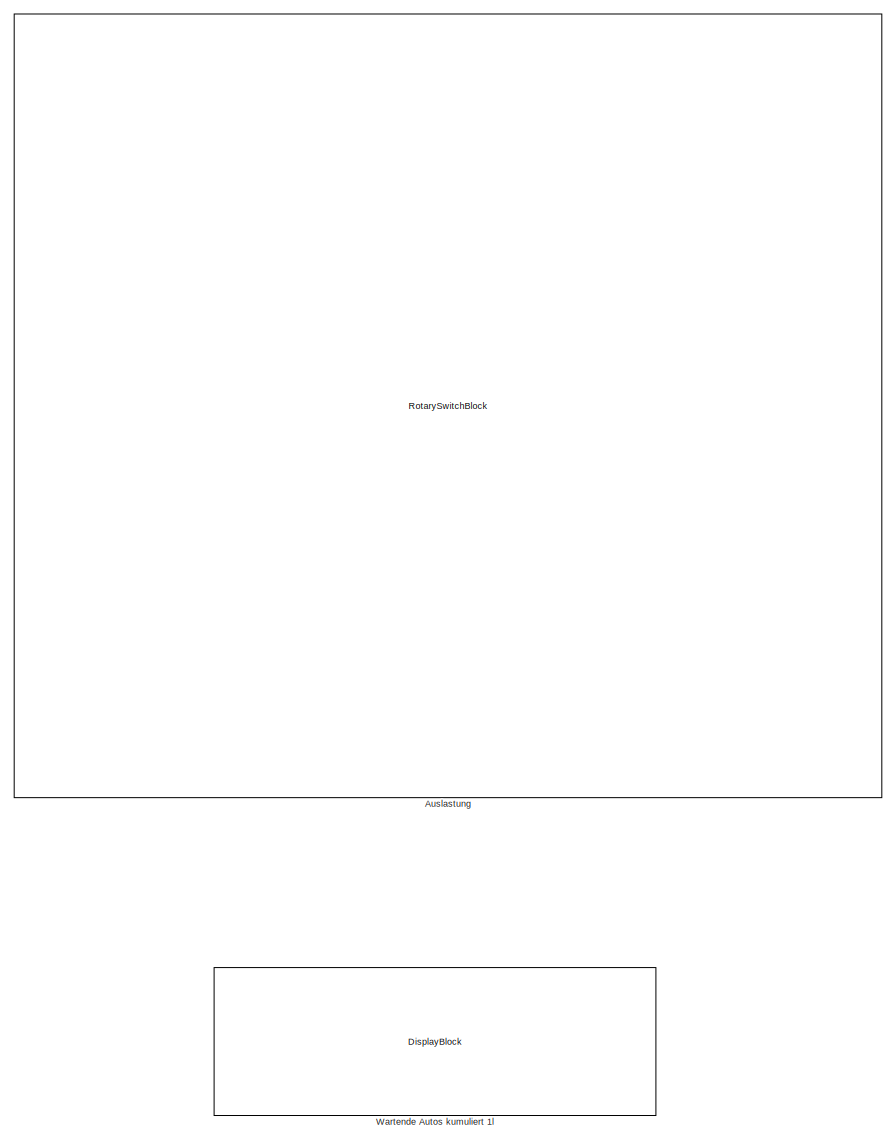
[diagram: root canvas - part 1/13, top right region]
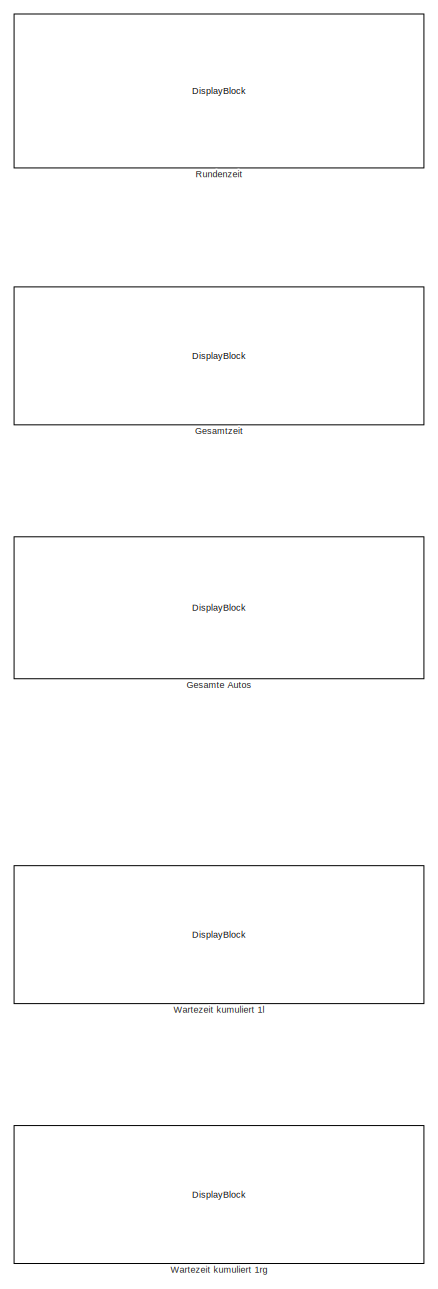
[diagram: root canvas - part 2/13, top right region]
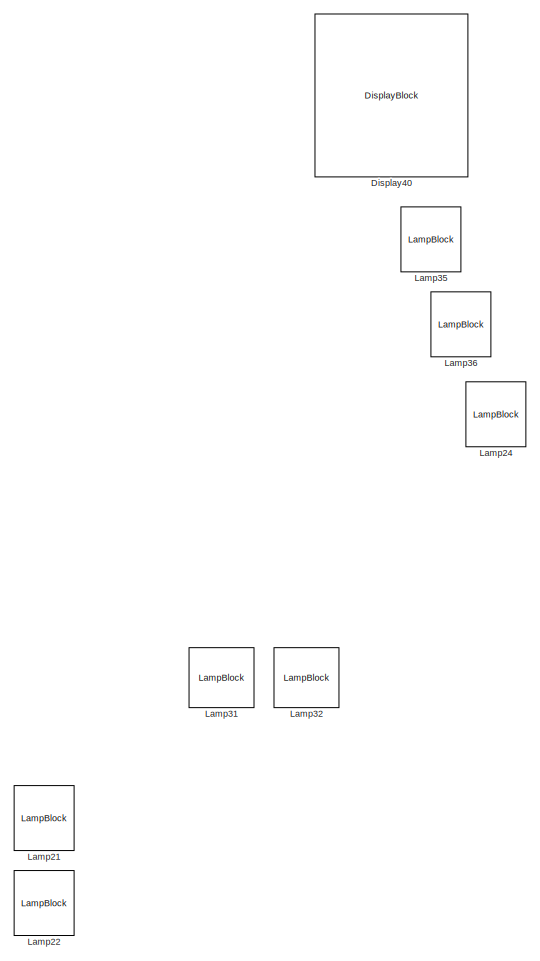
[diagram: root canvas - part 3/13, top left region]
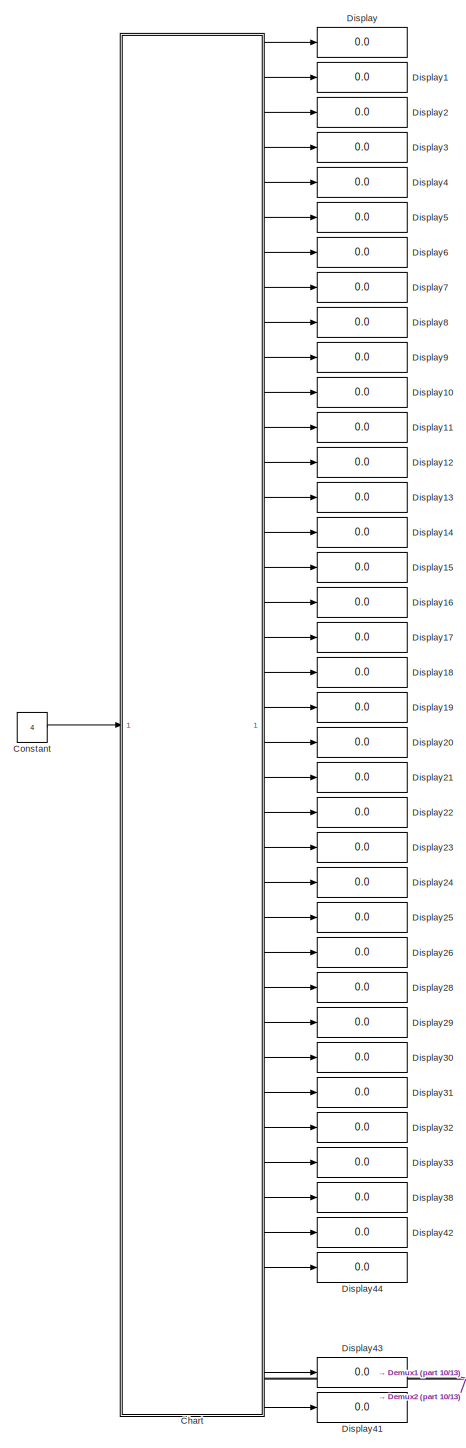
[diagram: root canvas - part 4/13, middle left region]
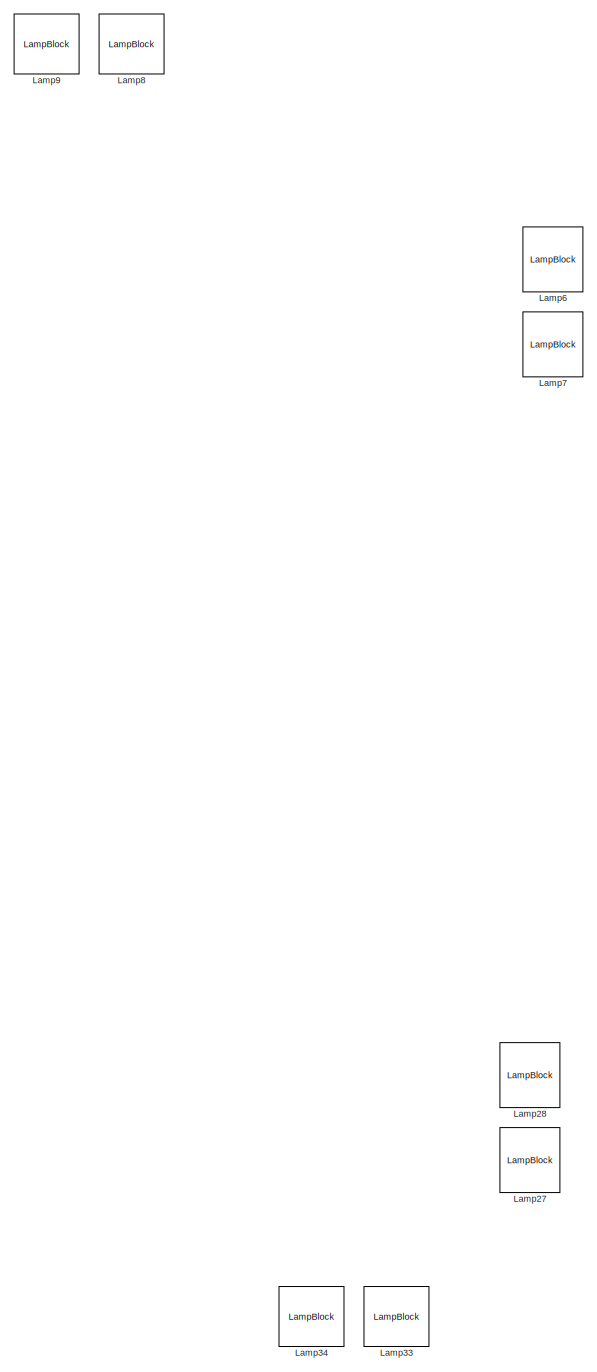
[diagram: root canvas - part 5/13, central region]
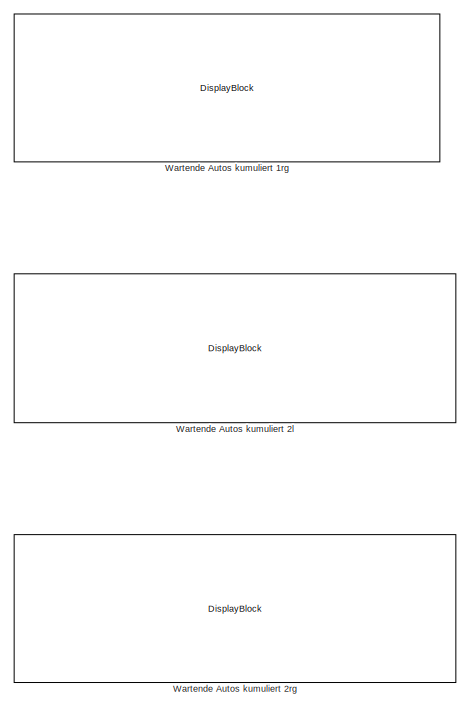
[diagram: root canvas - part 6/13, middle right region]
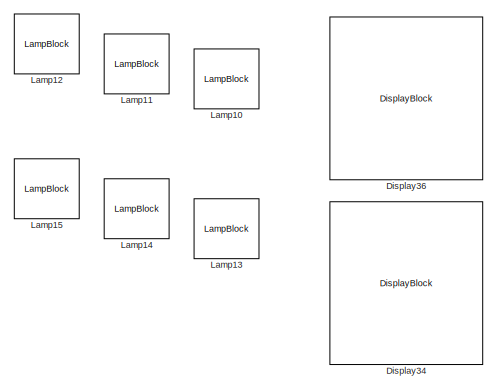
[diagram: root canvas - part 7/13, central region]
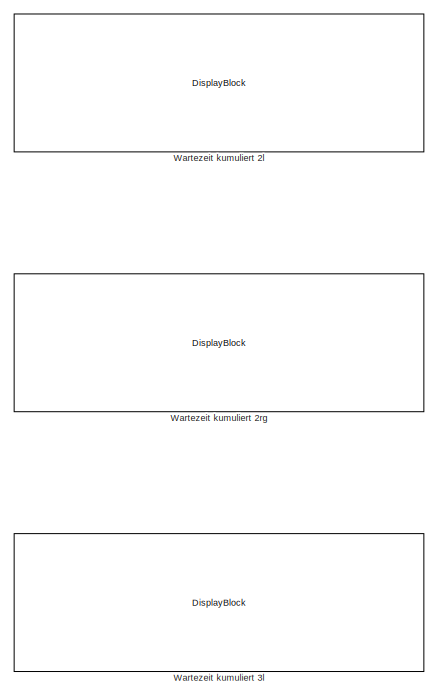
[diagram: root canvas - part 8/13, middle right region]
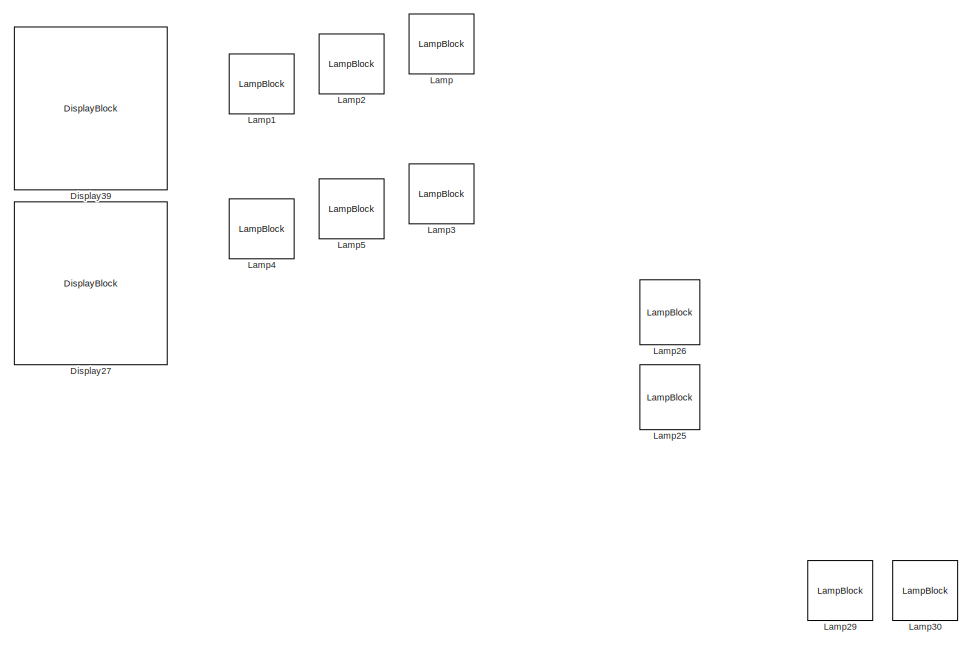
[diagram: root canvas - part 9/13, middle left region]
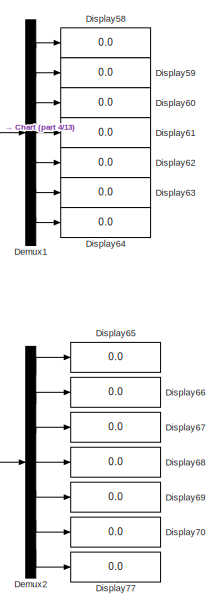
[diagram: root canvas - part 10/13, bottom left region]
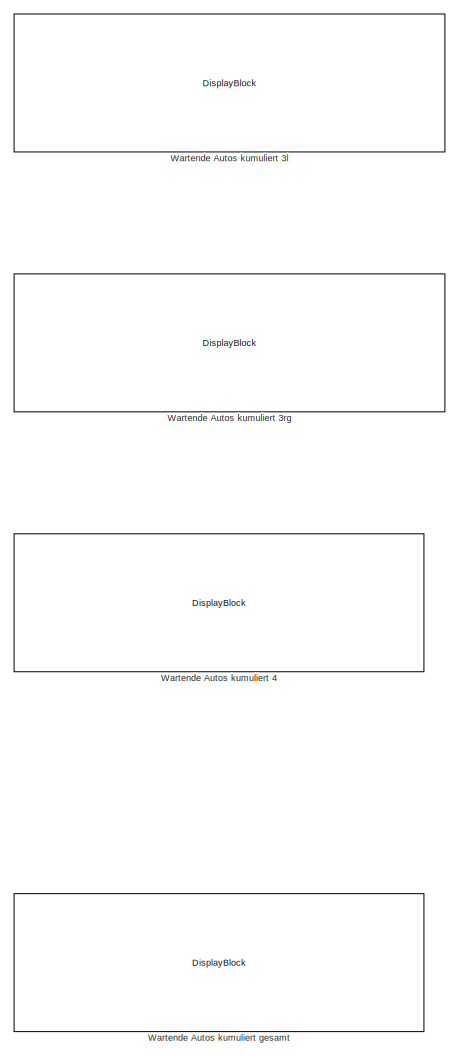
[diagram: root canvas - part 11/13, bottom right region]
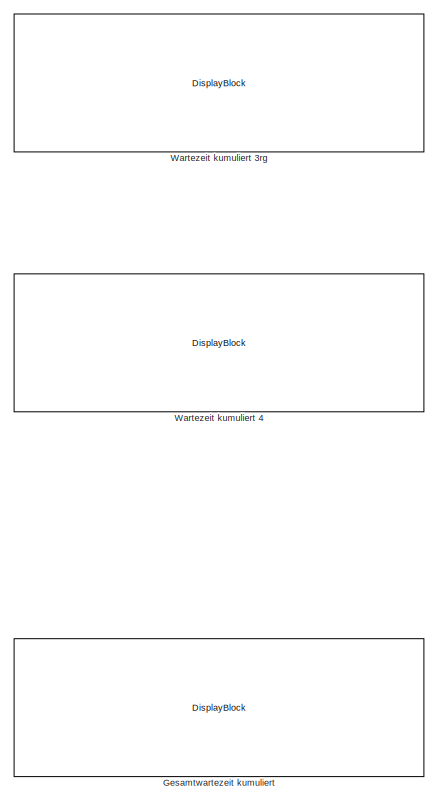
[diagram: root canvas - part 12/13, bottom right region]
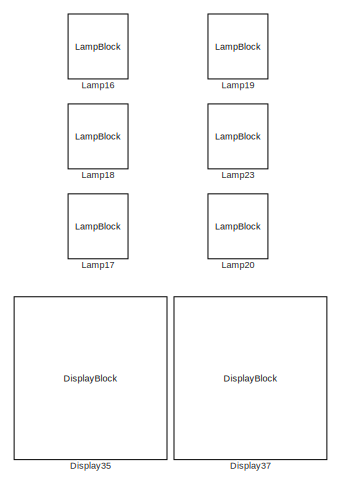
[diagram: root canvas - part 13/13, bottom center region]
MODEL slx_3543dd27c78e
KIND model
CONFIG AbsTol = auto
CONFIG EnableMultiTasking = off
CONFIG FixedStep = 1
CONFIG MaxStep = auto
CONFIG MinStep = auto
CONFIG RelTol = 1e-3
CONFIG SampleTimeConstraint = Unconstrained
CONFIG SolverName = FixedStepAuto
CONFIG StartTime = 0.0
CONFIG StopTime = 9995
WORKSPACE source: MATLAB code (in-file)
WORKSPACE code: function [autos_l1, autos_rg1, autos_2l, autos_2rg, autos_3l, autos_3rg, autos_4, fehler] = generateCars(Auslastung)
WORKSPACE code: if (auslastung == 1)
WORKSPACE autos_l1 = round(randn())
WORKSPACE autos_rg1 = round(randn())
WORKSPACE autos_2l = round(randn())
WORKSPACE autos_2rg = round(randn())
WORKSPACE autos_3l = round(randn())
WORKSPACE autos_3rg = round(randn())
WORKSPACE autos_4 = round(randn())
WORKSPACE code: else
WORKSPACE fehler = 1
WORKSPACE code: end
WORKSPACE code: if (auslastung == 2)
WORKSPACE autos_l1 = round(randn())
WORKSPACE autos_rg1 = round(4 + 2 * randn())
WORKSPACE autos_2l = round(1 + randn())
WORKSPACE autos_2rg = round(4 + 2 * randn())
WORKSPACE autos_3l = round(randn())
WORKSPACE autos_3rg = round(2 + randn())
WORKSPACE autos_4 = round(1 + randn())
WORKSPACE code: else
WORKSPACE fehler = 1
WORKSPACE code: end
WORKSPACE code: if (auslastung == 3)
WORKSPACE autos_l1 = round(1.5 + randn())
WORKSPACE autos_rg1 = round(7 + 2 * randn())
WORKSPACE autos_2l = round(2 + randn())
WORKSPACE autos_2rg = round(7 + 2 * randn())
WORKSPACE autos_3l = round(2 * randn())
WORKSPACE autos_3rg = round(3 + randn())
WORKSPACE autos_4 = round(2 + randn())
WORKSPACE code: else
WORKSPACE fehler = 1
WORKSPACE code: end
WORKSPACE code: if (auslastung == 4)
WORKSPACE autos_l1 = round(2.5 + randn())
WORKSPACE autos_rg1 = round(13 + 3 * randn())
WORKSPACE autos_2l = round(5 + randn())
WORKSPACE autos_2rg = round(13 + 3 * randn())
WORKSPACE autos_3l = round(2 + randn())
WORKSPACE autos_3rg = round(2 + randn())
WORKSPACE autos_4 = round(5 + randn())
WORKSPACE code: else
WORKSPACE fehler = 1
WORKSPACE code: end
WORKSPACE code: end
BLOCK [RotarySwitchBlock] Auslastung
  LabelPosition = Hide
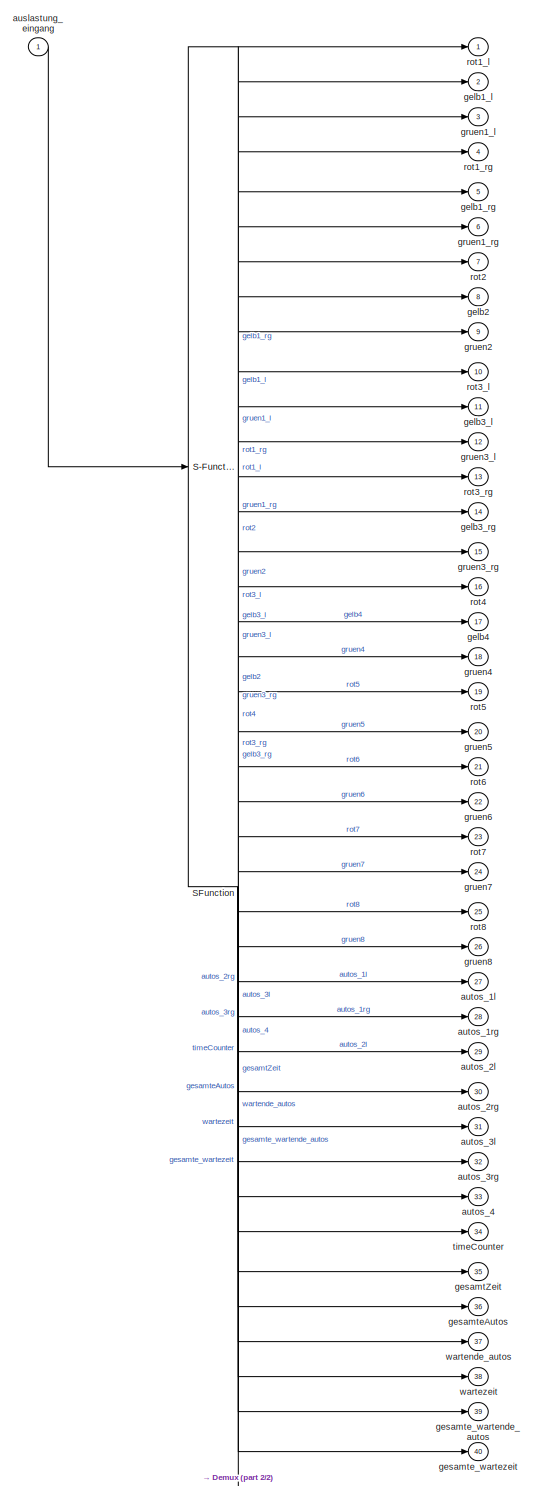
[diagram: Chart - part 1/2, most of the canvas]
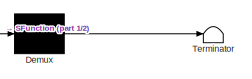
[diagram: Chart - part 2/2, bottom right region]
BLOCK [SubSystem] Chart
  ErrorFcn = Stateflow.Translate.translate
  PermitHierarchicalResolution = ExplicitOnly
  SFBlockType = Chart
  TreatAsAtomicUnit = on
BLOCK [Demux] Chart/ Demux 
  Outputs = 1
BLOCK [S-Function] Chart/ SFunction 
  EnableBusSupport = on
  FunctionName = sf_sfun
  PortCounts = [1 41]
  SFcnIsStateOwnerBlock = off
  SFunctionDeploymentMode = off
  Tag = Stateflow S-Function 3
BLOCK [Terminator] Chart/ Terminator 
BLOCK [Inport] Chart/auslastung_eingang
BLOCK [Outport] Chart/autos_1l
  Port = 27
BLOCK [Outport] Chart/autos_1rg
  Port = 28
BLOCK [Outport] Chart/autos_2l
  Port = 29
BLOCK [Outport] Chart/autos_2rg
  Port = 30
BLOCK [Outport] Chart/autos_3l
  Port = 31
BLOCK [Outport] Chart/autos_3rg
  Port = 32
BLOCK [Outport] Chart/autos_4
  Port = 33
BLOCK [Outport] Chart/gelb1_l
  Port = 2
BLOCK [Outport] Chart/gelb1_rg
  Port = 5
BLOCK [Outport] Chart/gelb2
  Port = 8
BLOCK [Outport] Chart/gelb3_l
  Port = 11
BLOCK [Outport] Chart/gelb3_rg
  Port = 14
BLOCK [Outport] Chart/gelb4
  Port = 17
BLOCK [Outport] Chart/gesamtZeit
  Port = 35
BLOCK [Outport] Chart/gesamteAutos
  Port = 36
BLOCK [Outport] Chart/gesamte_wartende_autos
  Port = 39
BLOCK [Outport] Chart/gesamte_wartezeit
  Port = 40
BLOCK [Outport] Chart/gruen1_l
  Port = 3
BLOCK [Outport] Chart/gruen1_rg
  Port = 6
BLOCK [Outport] Chart/gruen2
  Port = 9
BLOCK [Outport] Chart/gruen3_l
  Port = 12
BLOCK [Outport] Chart/gruen3_rg
  Port = 15
BLOCK [Outport] Chart/gruen4
  Port = 18
BLOCK [Outport] Chart/gruen5
  Port = 20
BLOCK [Outport] Chart/gruen6
  Port = 22
BLOCK [Outport] Chart/gruen7
  Port = 24
BLOCK [Outport] Chart/gruen8
  Port = 26
BLOCK [Outport] Chart/rot1_l
BLOCK [Outport] Chart/rot1_rg
  Port = 4
BLOCK [Outport] Chart/rot2
  Port = 7
BLOCK [Outport] Chart/rot3_l
  Port = 10
BLOCK [Outport] Chart/rot3_rg
  Port = 13
BLOCK [Outport] Chart/rot4
  Port = 16
BLOCK [Outport] Chart/rot5
  Port = 19
BLOCK [Outport] Chart/rot6
  Port = 21
BLOCK [Outport] Chart/rot7
  Port = 23
BLOCK [Outport] Chart/rot8
  Port = 25
BLOCK [Outport] Chart/timeCounter
  Port = 34
BLOCK [Outport] Chart/wartende_autos
  Port = 37
BLOCK [Outport] Chart/wartezeit
  Port = 38
BLOCK [Constant] Constant
  Value = 4
BLOCK [Demux] Demux1
  Outputs = 7
BLOCK [Demux] Demux2
  Outputs = 7
BLOCK [Display] Display
  Decimation = 1
BLOCK [Display] Display1
  Decimation = 1
BLOCK [Display] Display10
  Decimation = 1
BLOCK [Display] Display11
  Decimation = 1
BLOCK [Display] Display12
  Decimation = 1
BLOCK [Display] Display13
  Decimation = 1
BLOCK [Display] Display14
  Decimation = 1
BLOCK [Display] Display15
  Decimation = 1
BLOCK [Display] Display16
  Decimation = 1
BLOCK [Display] Display17
  Decimation = 1
BLOCK [Display] Display18
  Decimation = 1
BLOCK [Display] Display19
  Decimation = 1
BLOCK [Display] Display2
  Decimation = 1
BLOCK [Display] Display20
  Decimation = 1
BLOCK [Display] Display21
  Decimation = 1
BLOCK [Display] Display22
  Decimation = 1
BLOCK [Display] Display23
  Decimation = 1
BLOCK [Display] Display24
  Decimation = 1
BLOCK [Display] Display25
  Decimation = 1
BLOCK [Display] Display26
  Decimation = 1
BLOCK [DisplayBlock] Display27
  LabelPosition = Hide
  Layout = Fill available space
  Transparency = 1
BLOCK [Display] Display28
  Decimation = 1
BLOCK [Display] Display29
  Decimation = 1
BLOCK [Display] Display3
  Decimation = 1
BLOCK [Display] Display30
  Decimation = 1
BLOCK [Display] Display31
  Decimation = 1
BLOCK [Display] Display32
  Decimation = 1
BLOCK [Display] Display33
  Decimation = 1
BLOCK [DisplayBlock] Display34
  LabelPosition = Hide
  Layout = Fill available space
  Transparency = 1
BLOCK [DisplayBlock] Display35
  LabelPosition = Hide
  Layout = Fill available space
  Transparency = 1
BLOCK [DisplayBlock] Display36
  LabelPosition = Hide
  Layout = Fill available space
  Transparency = 1
BLOCK [DisplayBlock] Display37
  LabelPosition = Hide
  Layout = Fill available space
  Transparency = 1
BLOCK [Display] Display38
  Decimation = 1
BLOCK [DisplayBlock] Display39
  LabelPosition = Hide
  Layout = Fill available space
  Transparency = 1
BLOCK [Display] Display4
  Decimation = 1
BLOCK [DisplayBlock] Display40
  LabelPosition = Hide
  Layout = Fill available space
  Transparency = 1
BLOCK [Display] Display41
  Decimation = 1
BLOCK [Display] Display42
  Decimation = 1
BLOCK [Display] Display43
  Decimation = 1
BLOCK [Display] Display44
  Decimation = 1
BLOCK [Display] Display5
  Decimation = 1
BLOCK [Display] Display58
  Decimation = 1
BLOCK [Display] Display59
  Decimation = 1
BLOCK [Display] Display6
  Decimation = 1
BLOCK [Display] Display60
  Decimation = 1
BLOCK [Display] Display61
  Decimation = 1
BLOCK [Display] Display62
  Decimation = 1
BLOCK [Display] Display63
  Decimation = 1
BLOCK [Display] Display64
  Decimation = 1
BLOCK [Display] Display65
  Decimation = 1
BLOCK [Display] Display66
  Decimation = 1
BLOCK [Display] Display67
  Decimation = 1
BLOCK [Display] Display68
  Decimation = 1
BLOCK [Display] Display69
  Decimation = 1
BLOCK [Display] Display7
  Decimation = 1
BLOCK [Display] Display70
  Decimation = 1
BLOCK [Display] Display77
  Decimation = 1
BLOCK [Display] Display8
  Decimation = 1
BLOCK [Display] Display9
  Decimation = 1
BLOCK [DisplayBlock] Gesamte Autos
  LabelPosition = Hide
  Transparency = 1
BLOCK [DisplayBlock] Gesamtwartezeit kumuliert
  LabelPosition = Hide
  Transparency = 1
BLOCK [DisplayBlock] Gesamtzeit
  LabelPosition = Hide
  Transparency = 1
BLOCK [LampBlock] Lamp
  LabelPosition = Hide
BLOCK [LampBlock] Lamp1
  LabelPosition = Hide
BLOCK [LampBlock] Lamp10
  LabelPosition = Hide
BLOCK [LampBlock] Lamp11
  LabelPosition = Hide
BLOCK [LampBlock] Lamp12
  LabelPosition = Hide
BLOCK [LampBlock] Lamp13
  LabelPosition = Hide
BLOCK [LampBlock] Lamp14
  LabelPosition = Hide
BLOCK [LampBlock] Lamp15
  LabelPosition = Hide
BLOCK [LampBlock] Lamp16
  LabelPosition = Hide
  NameLocation = right
BLOCK [LampBlock] Lamp17
  LabelPosition = Hide
  NameLocation = right
BLOCK [LampBlock] Lamp18
  LabelPosition = Hide
  NameLocation = right
BLOCK [LampBlock] Lamp19
  LabelPosition = Hide
  NameLocation = right
BLOCK [LampBlock] Lamp2
  LabelPosition = Hide
BLOCK [LampBlock] Lamp20
  LabelPosition = Hide
  NameLocation = right
BLOCK [LampBlock] Lamp21
  LabelPosition = Hide
  NameLocation = right
BLOCK [LampBlock] Lamp22
  LabelPosition = Hide
  NameLocation = right
BLOCK [LampBlock] Lamp23
  LabelPosition = Hide
  NameLocation = right
BLOCK [LampBlock] Lamp24
  LabelPosition = Hide
  NameLocation = left
BLOCK [LampBlock] Lamp25
  LabelPosition = Hide
  NameLocation = left
BLOCK [LampBlock] Lamp26
  LabelPosition = Hide
  NameLocation = left
BLOCK [LampBlock] Lamp27
  LabelPosition = Hide
  NameLocation = left
BLOCK [LampBlock] Lamp28
  LabelPosition = Hide
  NameLocation = left
BLOCK [LampBlock] Lamp29
  LabelPosition = Hide
  NameLocation = top
BLOCK [LampBlock] Lamp3
  LabelPosition = Hide
BLOCK [LampBlock] Lamp30
  LabelPosition = Hide
  NameLocation = top
BLOCK [LampBlock] Lamp31
  LabelPosition = Hide
  NameLocation = top
BLOCK [LampBlock] Lamp32
  LabelPosition = Hide
  NameLocation = top
BLOCK [LampBlock] Lamp33
  LabelPosition = Hide
BLOCK [LampBlock] Lamp34
  LabelPosition = Hide
BLOCK [LampBlock] Lamp35
  LabelPosition = Hide
  NameLocation = left
BLOCK [LampBlock] Lamp36
  LabelPosition = Hide
  NameLocation = left
BLOCK [LampBlock] Lamp4
  LabelPosition = Hide
BLOCK [LampBlock] Lamp5
  LabelPosition = Hide
BLOCK [LampBlock] Lamp6
  LabelPosition = Hide
  NameLocation = right
BLOCK [LampBlock] Lamp7
  LabelPosition = Hide
  NameLocation = right
BLOCK [LampBlock] Lamp8
  LabelPosition = Hide
  NameLocation = top
BLOCK [LampBlock] Lamp9
  LabelPosition = Hide
  NameLocation = top
BLOCK [DisplayBlock] Rundenzeit
  LabelPosition = Hide
  Transparency = 1
BLOCK [DisplayBlock] Wartende Autos kumuliert 1l
  LabelPosition = Hide
  Transparency = 1
BLOCK [DisplayBlock] Wartende Autos kumuliert 1rg
  LabelPosition = Hide
  Transparency = 1
BLOCK [DisplayBlock] Wartende Autos kumuliert 2l
  LabelPosition = Hide
  Transparency = 1
BLOCK [DisplayBlock] Wartende Autos kumuliert 2rg
  LabelPosition = Hide
  Transparency = 1
BLOCK [DisplayBlock] Wartende Autos kumuliert 3l
  LabelPosition = Hide
  Transparency = 1
BLOCK [DisplayBlock] Wartende Autos kumuliert 3rg
  LabelPosition = Hide
  Transparency = 1
BLOCK [DisplayBlock] Wartende Autos kumuliert 4
  LabelPosition = Hide
  Transparency = 1
BLOCK [DisplayBlock] Wartende Autos kumuliert gesamt
  LabelPosition = Hide
  Transparency = 1
BLOCK [DisplayBlock] Wartezeit kumuliert 1l
  LabelPosition = Hide
  Transparency = 1
BLOCK [DisplayBlock] Wartezeit kumuliert 1rg
  LabelPosition = Hide
  Transparency = 1
BLOCK [DisplayBlock] Wartezeit kumuliert 2l
  LabelPosition = Hide
  Transparency = 1
BLOCK [DisplayBlock] Wartezeit kumuliert 2rg
  LabelPosition = Hide
  Transparency = 1
BLOCK [DisplayBlock] Wartezeit kumuliert 3l
  LabelPosition = Hide
  Transparency = 1
BLOCK [DisplayBlock] Wartezeit kumuliert 3rg
  LabelPosition = Hide
  Transparency = 1
BLOCK [DisplayBlock] Wartezeit kumuliert 4
  LabelPosition = Hide
  Transparency = 1
LINE Chart:1 -> Display:1
LINE Chart:10 -> Display9:1
LINE Chart:11 -> Display10:1
LINE Chart:12 -> Display11:1
LINE Chart:13 -> Display12:1
LINE Chart:14 -> Display13:1
LINE Chart:15 -> Display14:1
LINE Chart:16 -> Display15:1
LINE Chart:17 -> Display16:1
LINE Chart:18 -> Display17:1
LINE Chart:19 -> Display18:1
LINE Chart:2 -> Display1:1
LINE Chart:20 -> Display19:1
LINE Chart:21 -> Display20:1
LINE Chart:22 -> Display21:1
LINE Chart:23 -> Display22:1
LINE Chart:24 -> Display23:1
LINE Chart:25 -> Display24:1
LINE Chart:26 -> Display25:1
LINE Chart:27 -> Display26:1
LINE Chart:28 -> Display28:1
LINE Chart:29 -> Display29:1
LINE Chart:3 -> Display2:1
LINE Chart:30 -> Display30:1
LINE Chart:31 -> Display31:1
LINE Chart:32 -> Display32:1
LINE Chart:33 -> Display33:1
LINE Chart:34 -> Display38:1
LINE Chart:35 -> Display42:1
LINE Chart:36 -> Display44:1
LINE Chart:37 -> Demux1:1
LINE Chart:38 -> Demux2:1
LINE Chart:39 -> Display43:1
LINE Chart:4 -> Display3:1
LINE Chart:40 -> Display41:1
LINE Chart:5 -> Display4:1
LINE Chart:6 -> Display5:1
LINE Chart:7 -> Display6:1
LINE Chart:8 -> Display7:1
LINE Chart:9 -> Display8:1
LINE Constant:1 -> Chart:1
LINE Demux1:1 -> Display58:1
LINE Demux1:2 -> Display59:1
LINE Demux1:3 -> Display60:1
LINE Demux1:4 -> Display61:1
LINE Demux1:5 -> Display62:1
LINE Demux1:6 -> Display63:1
LINE Demux1:7 -> Display64:1
LINE Demux2:1 -> Display65:1
LINE Demux2:2 -> Display66:1
LINE Demux2:3 -> Display67:1
LINE Demux2:4 -> Display68:1
LINE Demux2:5 -> Display69:1
LINE Demux2:6 -> Display70:1
LINE Demux2:7 -> Display77:1
CHART Chart states=59 transitions=140
  STATE_LABEL 'Start\nentry:\nrot1_l = 1;\ngelb1_l = 0;\ngruen1_l = 0;\nrot1_rg = 1;\ngelb1_rg = 0;\ngruen1_rg = 0;\nrot2 = 1;\ngelb2 = 0;\ngruen2 = 0;\nrot3_l = 1;\ngelb3_l = 0;\ngruen3_l = 0;\nrot3_rg = 1;\ngelb3_rg = 0;\ngruen3_rg = 0;\nrot4 = 1;\ngelb4 = 0;\ngruen4 = 0;\nrot5 = 1;\ngruen5 = 0;\nrot6 = 1;\ngruen6 = 0;\nrot7 = 1;\ngruen7 = 0;\nrot8 = 1;\ngruen8 = 0;\nrestliche_autos = [0 0 0 0 0 0 0];\ntimeCounter = 0;\ntimer_spuren = [0 0...<+194ch>'
  STATE_LABEL 'maximale_kapazitaet = generiereKapazitaet'
  STATE_LABEL 'SCRIPT:\nfunction maximale_kapazitaet = generiereKapazitaet()\n    maximale_kapazitaet = [5 + randn(),  20 + 3 * randn(), 30 + 3 * randn(), 5 + 2 * randn(), 8 + 2 * randn(), 20 + 3 * randn(),  25 + 3 * randn(), 5 + randn(), 8 + 2 * randn(), 8 + 2 * randn()];\n    untere_kapazitaet = [3, 15, 22, 3, 5, 15, 19, 3, 5, 5];\n    obere_kapazitaet = [7, 25, 35, 7, 10, 25, 32, 7, 10, 10];\n    for i = 1:10\n    ...<+349ch>'
  STATE_LABEL 'anzahl_autos_pro_spur = generiereAutos(auslastung)'
  STATE_LABEL 'SCRIPT:\nfunction anzahl_autos_pro_spur = generiereAutos(auslastung)\n\n    if (auslastung == 1)\n        autos_1l = round(0.5 * randn());\n        autos_1rg = round(0.5 * randn());\n        autos_2l = round(0.5 * randn());\n        autos_2rg = round(0.5 * randn());\n        autos_3l = round(0.5 * randn());\n        autos_3rg = round(0.5 * randn());\n        autos_4 = round(0.5 * randn());\n    elseif (ausla...<+1692ch>'
  STATE_LABEL 'count_spur = countOnwards(time, timeElapsed, spuren)'
  STATE_LABEL 'SCRIPT:\nfunction count_spur = countOnwards(time, timeElapsed, spuren)\n    count_spur = time;\n    i = 1;\n    for i = 1 : length(time)\n        if spuren(i) == 1\n            count_spur(i) = count_spur(i) + timeElapsed;\n        end\n    end\nend'
  STATE_LABEL 'Autozuweisung\nentry:\nautos_1l = autos(1) + restliche_autos(1);\nautos_1rg = autos(2) + restliche_autos(2);\nautos_2l = autos(3) + restliche_autos(3);\nautos_2rg = autos(4) + restliche_autos(4);\nautos_3l = autos(5) + restliche_autos(5);\nautos_3rg = autos(6) + restliche_autos(6);\nautos_4 = autos(7) + restliche_autos(7);\n'
  STATE_LABEL 'runden_wartende_autos\nentry:\nrunden_wartende_autos = [autos_1l, autos_1rg, autos_2l, autos_2rg, autos_3l, autos_3rg, autos_4]'
  STATE_LABEL 'l1_rg1_rotgelb\nentry:\ngelb1_l = 1;\ngelb1_rg = 1;'
  STATE_LABEL '[resetted_time, ges_gewartete_autos, ges_gewartete_zeit, ges_wartende_autos, ges_wartezeit] = multifunction(timer,spuren,ges_gewartete_zeit, gewartete_autos, ges_gewartete_autos, ges_wartende_autos, ges_wartezeit)'
  STATE_LABEL 'SCRIPT:\nfunction [resetted_time, ges_gewartete_autos, ges_gewartete_zeit, ges_wartende_autos, ges_wartezeit] = multifunction(timer,spuren,ges_gewartete_zeit, gewartete_autos, ges_gewartete_autos, ges_wartende_autos, ges_wartezeit)\n    resetted_time = timer;\n    for i = 1 : length(spuren)\n        if spuren(i) == 1\n            resetted_time(i) = 0;\n            ges_gewartete_autos(i) = ges_gewartete_...<+314ch>'
  STATE_LABEL 'rg1_ampel2_rotgelb\nentry:\ngelb1_rg = 1;\ngelb2 = 1;'
  STATE_LABEL 'l1_rg1_gruen\nentry:\nrot1_l = 0;\ngelb1_l = 0;\ngruen1_l = 1;\nrot1_rg = 0;\ngelb1_rg = 0;\ngruen1_rg = 1;\nrot7 = 0;\ngruen7 = 1;'
  STATE_LABEL 'rg1_ampel2_gruen\nentry:\nrot1_rg = 0;\ngelb1_rg = 0;\ngruen1_rg = 1;\nrot2 = 0;\ngelb2 = 0;\ngruen2 = 1;\nrot7 = 0;\ngruen7 = 1;\nrot8 = 0;\ngruen8 = 1;'
  STATE_LABEL 'l1_gelb\nentry:\ngelb1_l = 1;\ngruen1_l = 0;'
  STATE_LABEL 'l1_rot\nentry:\nrot1_l = 1;\ngelb1_l = 0;'
  STATE_LABEL 'verbleibende_autos = subtrahiereAutos(anzahl_autos_pro_spur, maximale_kapazitaet)'
  STATE_LABEL 'SCRIPT:\nfunction verbleibende_autos = subtrahiereAutos(anzahl_autos_pro_spur, maximale_kapazitaet)\n    verbleibende_autos = round(anzahl_autos_pro_spur - maximale_kapazitaet);\n    if (verbleibende_autos < 0)\n        verbleibende_autos = 0;\n    end\nend'
  STATE_LABEL 'timer = resetTimer'
  STATE_LABEL 'SCRIPT:\nfunction timer = resetTimer()\n    timer = 0;\nend\n'
  STATE_LABEL 'neu_autos1l\nentry:\nautos_1l = restliche_autos(1)'
  STATE_LABEL 'timer = refresher(startTime, timeElapsed)'
  STATE_LABEL 'SCRIPT:\nfunction timer = refresher(startTime, timeElapsed)\n    timer = startTime + timeElapsed;\nend'
  STATE_LABEL 'ampel2_rotgelb\nentry:\ngelb2 = 1;'
  STATE_LABEL 'Fuss7_rot1\nentry:\nrot7 = 1;\ngruen7 = 0;'
  STATE_LABEL 'ampel2_fuss8_gruen\nrot2 = 0;\ngelb2 = 0;\ngruen2 = 1;\nrot8 = 0;\ngruen8 = 1;'
  STATE_LABEL 'rg1_gelb1\nentry:\ngelb1_rg = 1;\ngruen1_rg = 0;'
  STATE_LABEL 'Fuss7_rot\nentry:\nrot7 = 1;\ngruen7 = 0;'
  STATE_LABEL 'rg1_gelb\nentry:\ngelb1_rg = 1;\ngruen1_rg = 0;'
  STATE_LABEL 'rg1_rot\nentry:\ngelb1_rg = 0;\nrot1_rg = 1;'
  STATE_LABEL 'neu_autos1rg2\nentry:\nautos_1rg = restliche_autos(2)'
  STATE_LABEL 'neu_autos1rg\nentry:\nautos_1rg = restliche_autos(2)'
  STATE_LABEL 'fuss8_rot1\nentry:\nrot8 = 1;\ngruen8 = 0;'
  STATE_LABEL 'fuss8_rot\nentry:\nrot8 = 1;\ngruen8 = 0;'
  STATE_LABEL 'ampel2_gelb1\nentry:\ngelb2 = 1;\ngruen2 = 0;'
  STATE_LABEL 'ampel2_gelb\nentry:\ngelb2 = 1;\ngruen2 = 0;'
  STATE_LABEL 'ampel2_rot1\nrot2 = 1;\ngelb2 = 0;'
  STATE_LABEL 'ampel2_rot\nrot2 = 1;\ngelb2 = 0;'
  STATE_LABEL 'neu_autos2l1\nentry:\nautos_2l = restliche_autos(3)'
CHART  states=0 transitions=0
